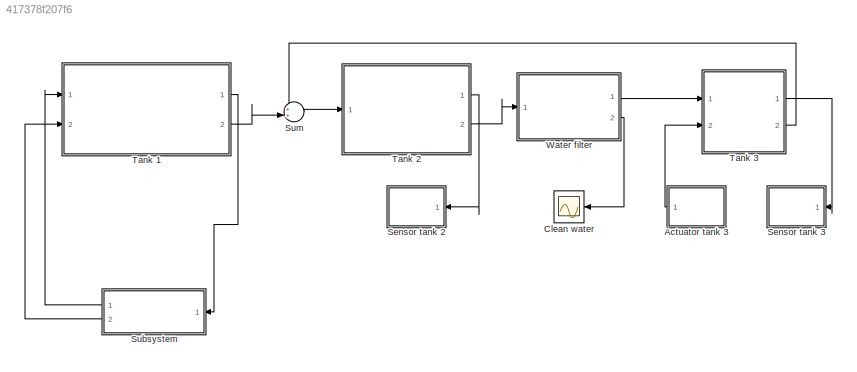
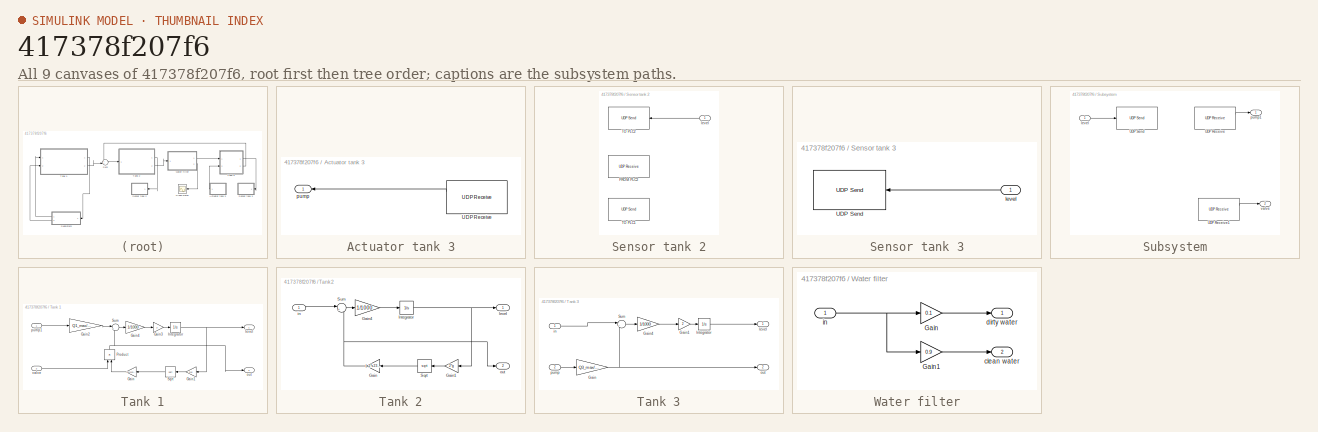
[diagram: thumbnail index - all 9 canvases of the model, root first then tree order]
MODEL slx_417378f207f6
KIND model
CONFIG AbsTol = auto
CONFIG EnableMultiTasking = off
CONFIG FixedStep = auto
CONFIG MaxStep = auto
CONFIG MinStep = auto
CONFIG RelTol = 1e-3
CONFIG SampleTimeConstraint = Unconstrained
CONFIG SolverName = VariableStepAuto
CONFIG StartTime = 0.0
CONFIG StopTime = 1000
BLOCK [SubSystem] Actuator tank 3
  Ports = [0, 1]
  RequestExecContextInheritance = off
BLOCK [Reference] Actuator tank 3/UDP Receive  REF=dspnetwork/UDP Receive
  NameLocation = top
  Ports = [0, 2]
  SourceBlock = dspnetwork/UDP Receive
  SourceProductBaseCode = SL
  SourceType = UDP Receive
BLOCK [Outport] Actuator tank 3/pump
  NameLocation = top
  VectorParamsAs1DForOutWhenUnconnected = off
BLOCK [Scope] Clean water 
  Floating = off
  NumInputPorts = 1
  Ports = [1]
  ScopeSpecificationString = Simulink.scopes.TimeScopeBlockCfg('CurrentConfiguration', extmgr.ConfigurationSet(extmgr.Configuration('Core','General UI',true),extmgr.Configuration('Core','Source UI',true),extmgr.Configuration('Sources','WiredSimulink',true,'DataLoggingVariableName','ScopeData1'),extmgr.Configuration('Visuals','Time Domain',true,'SerializedDisplays',{struct('MinYLimReal','-0.01323','MaxYLimReal','0.12069','YLab...<+1388ch>
BLOCK [SubSystem] Sensor tank 2
  Ports = [1]
  RequestExecContextInheritance = off
BLOCK [Reference] Sensor tank 2/FROM PLC2  REF=dspnetwork/UDP Receive
  Ports = [0, 2]
  SourceBlock = dspnetwork/UDP Receive
  SourceProductBaseCode = SL
  SourceType = UDP Receive
BLOCK [Reference] Sensor tank 2/TO PLC1  REF=dspnetwork/UDP Send
  NameLocation = top
  Ports = [1]
  SourceBlock = dspnetwork/UDP Send
  SourceProductBaseCode = SL
  SourceType = UDP Send
BLOCK [Reference] Sensor tank 2/TO PLC2  REF=dspnetwork/UDP Send
  NameLocation = top
  Ports = [1]
  SourceBlock = dspnetwork/UDP Send
  SourceProductBaseCode = SL
  SourceType = UDP Send
BLOCK [Inport] Sensor tank 2/level
  NameLocation = top
BLOCK [SubSystem] Sensor tank 3
  Ports = [1]
  RequestExecContextInheritance = off
BLOCK [Reference] Sensor tank 3/UDP Send  REF=dspnetwork/UDP Send
  NameLocation = top
  Ports = [1]
  SourceBlock = dspnetwork/UDP Send
  SourceProductBaseCode = SL
  SourceType = UDP Send
BLOCK [Inport] Sensor tank 3/level
  NameLocation = top
BLOCK [SubSystem] Subsystem
  NameLocation = top
  Ports = [1, 2]
  RequestExecContextInheritance = off
BLOCK [Reference] Subsystem/UDP Receive  REF=dspnetwork/UDP Receive
  Ports = [0, 2]
  SourceBlock = dspnetwork/UDP Receive
  SourceProductBaseCode = SL
  SourceType = UDP Receive
BLOCK [Reference] Subsystem/UDP Receive1  REF=dspnetwork/UDP Receive
  Ports = [0, 2]
  SourceBlock = dspnetwork/UDP Receive
  SourceProductBaseCode = SL
  SourceType = UDP Receive
BLOCK [Reference] Subsystem/UDP Send  REF=dspnetwork/UDP Send
  Ports = [1]
  SourceBlock = dspnetwork/UDP Send
  SourceProductBaseCode = SL
  SourceType = UDP Send
BLOCK [Inport] Subsystem/level
BLOCK [Outport] Subsystem/pump1
  VectorParamsAs1DForOutWhenUnconnected = off
BLOCK [Outport] Subsystem/valve
  Port = 2
  VectorParamsAs1DForOutWhenUnconnected = off
BLOCK [Sum] Sum
  Inputs = ++|
  Ports = [2, 1]
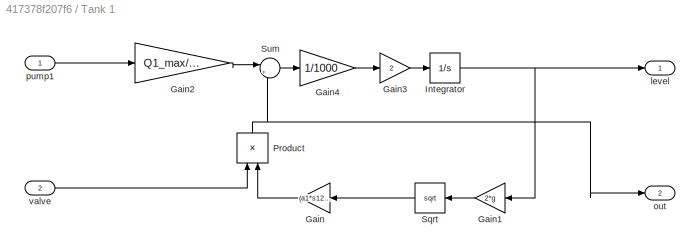
BLOCK [SubSystem] Tank 1
  Ports = [2, 2]
  RequestExecContextInheritance = off
BLOCK [Gain] Tank 1/Gain
  Gain = (a1*s12)/A1
  NameLocation = top
BLOCK [Gain] Tank 1/Gain1
  Gain = 2*g
  NameLocation = top
BLOCK [Gain] Tank 1/Gain2
  Gain = Q1_max/A1
BLOCK [Gain] Tank 1/Gain3
  Gain = 2
BLOCK [Gain] Tank 1/Gain4
  Gain = 1/1000
BLOCK [Integrator] Tank 1/Integrator
  InitialCondition = 0.11*H1_max
  Ports = [1, 1]
BLOCK [Product] Tank 1/Product
  NameLocation = right
  Ports = [2, 1]
BLOCK [Sqrt] Tank 1/Sqrt
  NameLocation = top
BLOCK [Sum] Tank 1/Sum
  Inputs = |+-
  Ports = [2, 1]
BLOCK [Outport] Tank 1/level
  VectorParamsAs1DForOutWhenUnconnected = off
BLOCK [Outport] Tank 1/out
  Port = 2
  VectorParamsAs1DForOutWhenUnconnected = off
BLOCK [Inport] Tank 1/pump1
BLOCK [Inport] Tank 1/valve
  Port = 2
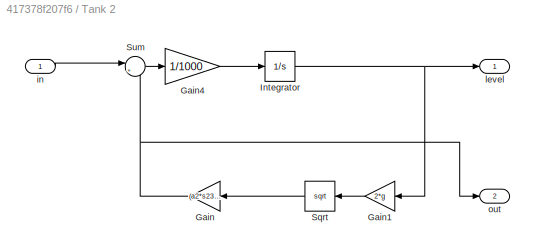
BLOCK [SubSystem] Tank 2
  Ports = [1, 2]
  RequestExecContextInheritance = off
BLOCK [Gain] Tank 2/Gain
  Gain = (a2*s23)/A1
  NameLocation = top
BLOCK [Gain] Tank 2/Gain1
  Gain = 2*g
  NameLocation = top
BLOCK [Gain] Tank 2/Gain4
  Gain = 1/1000
BLOCK [Integrator] Tank 2/Integrator
  InitialCondition = 0.11*H1_max
  Ports = [1, 1]
BLOCK [Sqrt] Tank 2/Sqrt
  NameLocation = top
BLOCK [Sum] Tank 2/Sum
  Inputs = |+-
  Ports = [2, 1]
BLOCK [Inport] Tank 2/in
BLOCK [Outport] Tank 2/level
  VectorParamsAs1DForOutWhenUnconnected = off
BLOCK [Outport] Tank 2/out
  Port = 2
  VectorParamsAs1DForOutWhenUnconnected = off
BLOCK [SubSystem] Tank 3
  Ports = [2, 2]
  RequestExecContextInheritance = off
BLOCK [Gain] Tank 3/Gain
  Gain = Q3_max/A3
BLOCK [Gain] Tank 3/Gain1
  Gain = 2
BLOCK [Gain] Tank 3/Gain4
  Gain = 1/1000
BLOCK [Integrator] Tank 3/Integrator
  Ports = [1, 1]
BLOCK [Sum] Tank 3/Sum
  Inputs = |+-
  Ports = [2, 1]
BLOCK [Inport] Tank 3/in
BLOCK [Outport] Tank 3/level
  VectorParamsAs1DForOutWhenUnconnected = off
BLOCK [Outport] Tank 3/out
  Port = 2
  VectorParamsAs1DForOutWhenUnconnected = off
BLOCK [Inport] Tank 3/pump
  Port = 2
BLOCK [SubSystem] Water filter
  Ports = [1, 2]
  RequestExecContextInheritance = off
BLOCK [Gain] Water filter/Gain
  Gain = 0.1
BLOCK [Gain] Water filter/Gain1
  Gain = 0.9
BLOCK [Outport] Water filter/clean water 
  Port = 2
  VectorParamsAs1DForOutWhenUnconnected = off
BLOCK [Outport] Water filter/dirty water
  VectorParamsAs1DForOutWhenUnconnected = off
BLOCK [Inport] Water filter/in
LINE Actuator tank 3/UDP Receive:1 -> Actuator tank 3/pump:1
LINE Actuator tank 3:1 -> Tank 3:2
LINE Sensor tank 2/level:1 -> Sensor tank 2/TO PLC2:1
LINE Sensor tank 3/level:1 -> Sensor tank 3/UDP Send:1
LINE Subsystem/UDP Receive1:1 -> Subsystem/valve:1
LINE Subsystem/UDP Receive:1 -> Subsystem/pump1:1
LINE Subsystem/level:1 -> Subsystem/UDP Send:1
LINE Subsystem:1 -> Tank 1:1
LINE Subsystem:2 -> Tank 1:2
LINE Sum:1 -> Tank 2:1
LINE Tank 1/Gain1:1 -> Tank 1/Sqrt:1
LINE Tank 1/Gain2:1 -> Tank 1/Sum:1
LINE Tank 1/Gain3:1 -> Tank 1/Integrator:1
LINE Tank 1/Gain4:1 -> Tank 1/Gain3:1
LINE Tank 1/Gain:1 -> Tank 1/Product:2
NET Tank 1/Integrator:1 -> Tank 1/Gain1:1, Tank 1/level:1
NET Tank 1/Product:1 -> Tank 1/Sum:2, Tank 1/out:1
LINE Tank 1/Sqrt:1 -> Tank 1/Gain:1
LINE Tank 1/Sum:1 -> Tank 1/Gain4:1
LINE Tank 1/pump1:1 -> Tank 1/Gain2:1
LINE Tank 1/valve:1 -> Tank 1/Product:1
LINE Tank 1:1 -> Subsystem:1
LINE Tank 1:2 -> Sum:2
LINE Tank 2/Gain1:1 -> Tank 2/Sqrt:1
LINE Tank 2/Gain4:1 -> Tank 2/Integrator:1
NET Tank 2/Gain:1 -> Tank 2/Sum:2, Tank 2/out:1
NET Tank 2/Integrator:1 -> Tank 2/Gain1:1, Tank 2/level:1
LINE Tank 2/Sqrt:1 -> Tank 2/Gain:1
LINE Tank 2/Sum:1 -> Tank 2/Gain4:1
LINE Tank 2/in:1 -> Tank 2/Sum:1
LINE Tank 2:1 -> Sensor tank 2:1
LINE Tank 2:2 -> Water filter:1
LINE Tank 3/Gain1:1 -> Tank 3/Integrator:1
LINE Tank 3/Gain4:1 -> Tank 3/Gain1:1
NET Tank 3/Gain:1 -> Tank 3/Sum:2, Tank 3/out:1
LINE Tank 3/Integrator:1 -> Tank 3/level:1
LINE Tank 3/Sum:1 -> Tank 3/Gain4:1
LINE Tank 3/in:1 -> Tank 3/Sum:1
LINE Tank 3/pump:1 -> Tank 3/Gain:1
LINE Tank 3:1 -> Sensor tank 3:1
LINE Tank 3:2 -> Sum:1
LINE Water filter/Gain1:1 -> Water filter/clean water :1
LINE Water filter/Gain:1 -> Water filter/dirty water:1
NET Water filter/in:1 -> Water filter/Gain1:1, Water filter/Gain:1
LINE Water filter:1 -> Tank 3:1
LINE Water filter:2 -> Clean water :1
note: NET lines group one-source signal fan-out (src -> all destinations, sorted); 1:1 wires keep LINE
